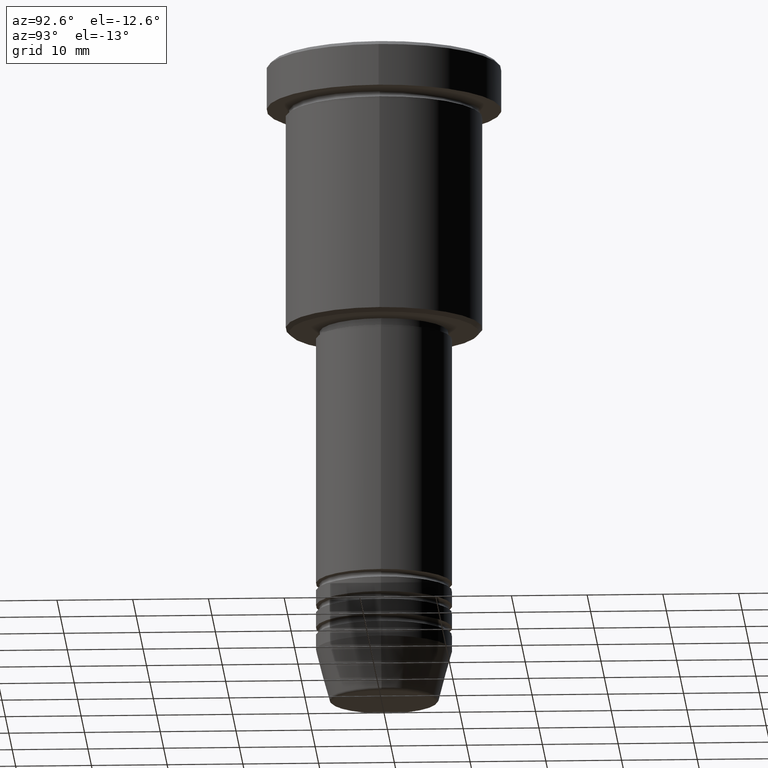
[diagram: clean part render]
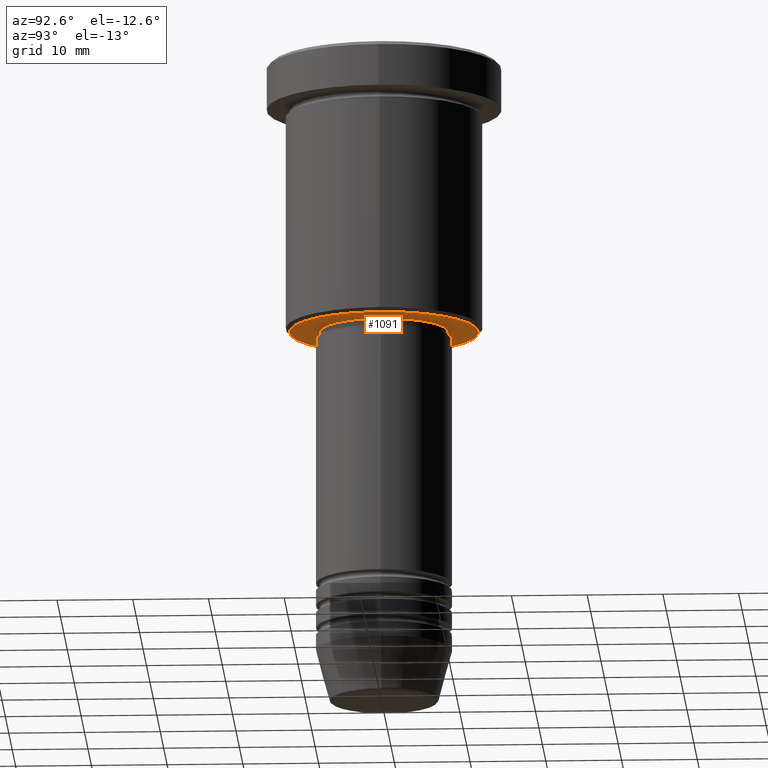
[diagram: same view with one face highlighted and labeled with its STEP entity id]
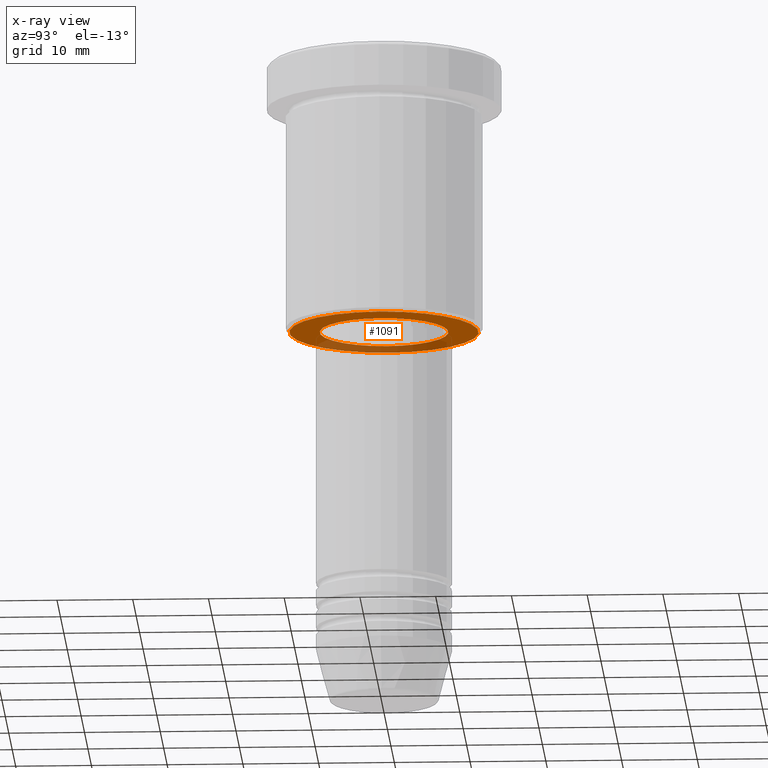
[diagram: x-ray of the same camera — body ghosted, the highlighted face saturated]
A machine part, auxiliary view. The second image highlights one B-rep face of the part: STEP entity #1091.
The next image is the same camera in x-ray: the body ghosted, the highlighted face saturated — about 29% of this face is hidden behind the body in this view.
In plain terms, the highlighted planar face has unit normal (0, 0, -1).
Its self-contained STEP definition (entity closure, byte-faithful):
#31 = DIRECTION ( 'NONE',  ( -1.000000000000000000, 0.000000000000000000, -0.000000000000000000 ) ) ;
#40 = AXIS2_PLACEMENT_3D ( 'NONE', #398, #188, #978 ) ;
#55 = CARTESIAN_POINT ( 'NONE',  ( 0.000000000000000000, 0.000000000000000000, -35.99999999999999289 ) ) ;
#90 = CIRCLE ( 'NONE', #40, 8.499999999999998224 ) ;
#181 = EDGE_CURVE ( 'NONE', #499, #567, #257, .T. ) ;
#186 = VERTEX_POINT ( 'NONE', #1146 ) ;
#188 = DIRECTION ( 'NONE',  ( -0.000000000000000000, -0.000000000000000000, 1.000000000000000000 ) ) ;
#234 = AXIS2_PLACEMENT_3D ( 'NONE', #55, #706, #984 ) ;
#257 = CIRCLE ( 'NONE', #234, 12.50000000000000355 ) ;
#266 = CARTESIAN_POINT ( 'NONE',  ( -12.50000000000000355, 1.561424668912875506E-15, -35.99999999999999289 ) ) ;
#295 = DIRECTION ( 'NONE',  ( 0.000000000000000000, 0.000000000000000000, -1.000000000000000000 ) ) ;
#329 = EDGE_LOOP ( 'NONE', ( #730, #1045 ) ) ;
#380 = FACE_OUTER_BOUND ( 'NONE', #395, .T. ) ;
#388 = DIRECTION ( 'NONE',  ( 1.000000000000000000, 0.000000000000000000, 0.000000000000000000 ) ) ;
#394 = EDGE_CURVE ( 'NONE', #186, #959, #549, .T. ) ;
#395 = EDGE_LOOP ( 'NONE', ( #1151, #1004 ) ) ;
#398 = CARTESIAN_POINT ( 'NONE',  ( 0.000000000000000000, 0.000000000000000000, -35.99999999999999289 ) ) ;
#499 = VERTEX_POINT ( 'NONE', #266 ) ;
#511 = PLANE ( 'NONE',  #770 ) ;
#529 = CARTESIAN_POINT ( 'NONE',  ( 0.000000000000000000, 13.00000000000000000, -35.99999999999999289 ) ) ;
#549 = CIRCLE ( 'NONE', #1175, 8.499999999999998224 ) ;
#567 = VERTEX_POINT ( 'NONE', #989 ) ;
#595 = EDGE_CURVE ( 'NONE', #567, #499, #1177, .T. ) ;
#640 = DIRECTION ( 'NONE',  ( -1.000000000000000000, 0.000000000000000000, 0.000000000000000000 ) ) ;
#659 = CARTESIAN_POINT ( 'NONE',  ( 8.499999999999998224, 0.000000000000000000, -35.99999999999999289 ) ) ;
#706 = DIRECTION ( 'NONE',  ( 0.000000000000000000, 0.000000000000000000, -1.000000000000000000 ) ) ;
#708 = CARTESIAN_POINT ( 'NONE',  ( 0.000000000000000000, 0.000000000000000000, -35.99999999999999289 ) ) ;
#730 = ORIENTED_EDGE ( 'NONE', *, *, #1066, .T. ) ;
#734 = FACE_BOUND ( 'NONE', #329, .T. ) ;
#770 = AXIS2_PLACEMENT_3D ( 'NONE', #529, #295, #31 ) ;
#817 = AXIS2_PLACEMENT_3D ( 'NONE', #708, #972, #640 ) ;
#840 = CARTESIAN_POINT ( 'NONE',  ( 0.000000000000000000, 0.000000000000000000, -35.99999999999999289 ) ) ;
#959 = VERTEX_POINT ( 'NONE', #659 ) ;
#972 = DIRECTION ( 'NONE',  ( 0.000000000000000000, 0.000000000000000000, -1.000000000000000000 ) ) ;
#978 = DIRECTION ( 'NONE',  ( 1.000000000000000000, 0.000000000000000000, 0.000000000000000000 ) ) ;
#984 = DIRECTION ( 'NONE',  ( -1.000000000000000000, 0.000000000000000000, 0.000000000000000000 ) ) ;
#989 = CARTESIAN_POINT ( 'NONE',  ( 12.50000000000000355, 0.000000000000000000, -35.99999999999999289 ) ) ;
#1004 = ORIENTED_EDGE ( 'NONE', *, *, #181, .T. ) ;
#1024 = DIRECTION ( 'NONE',  ( -0.000000000000000000, -0.000000000000000000, 1.000000000000000000 ) ) ;
#1045 = ORIENTED_EDGE ( 'NONE', *, *, #394, .T. ) ;
#1066 = EDGE_CURVE ( 'NONE', #959, #186, #90, .T. ) ;
#1091 = ADVANCED_FACE ( 'NONE', ( #380, #734 ), #511, .T. ) ;
#1146 = CARTESIAN_POINT ( 'NONE',  ( -8.499999999999998224, 1.040949779275249943E-15, -35.99999999999999289 ) ) ;
#1151 = ORIENTED_EDGE ( 'NONE', *, *, #595, .T. ) ;
#1175 = AXIS2_PLACEMENT_3D ( 'NONE', #840, #1024, #388 ) ;
#1177 = CIRCLE ( 'NONE', #817, 12.50000000000000355 ) ;